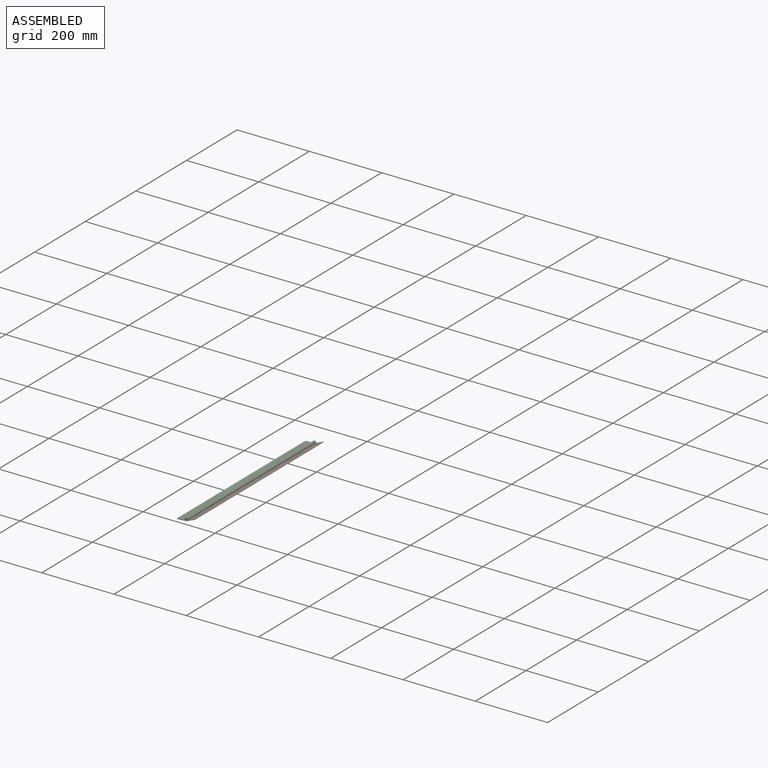
[diagram: assembled view]
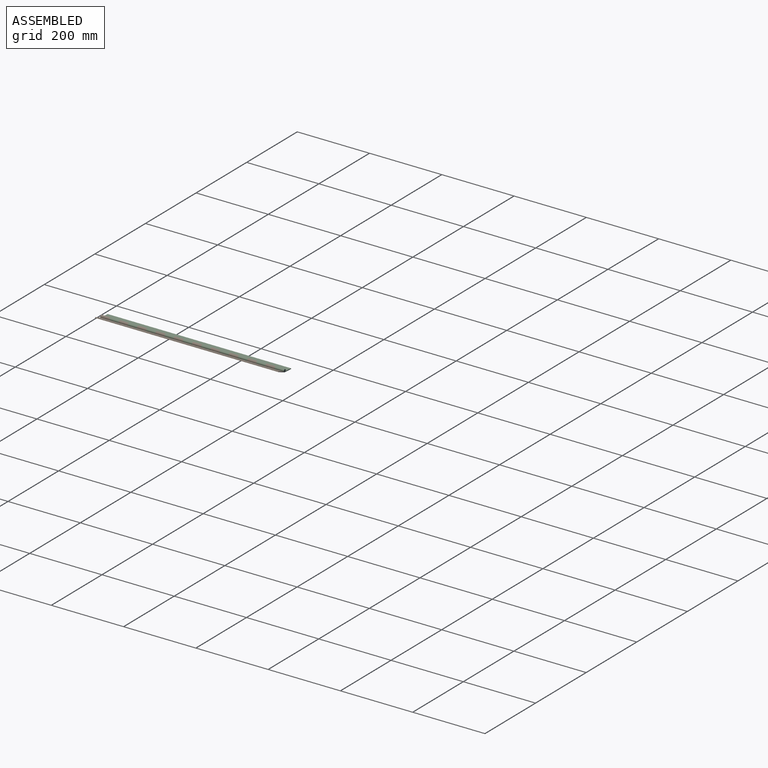
[diagram: assembled view, second angle]
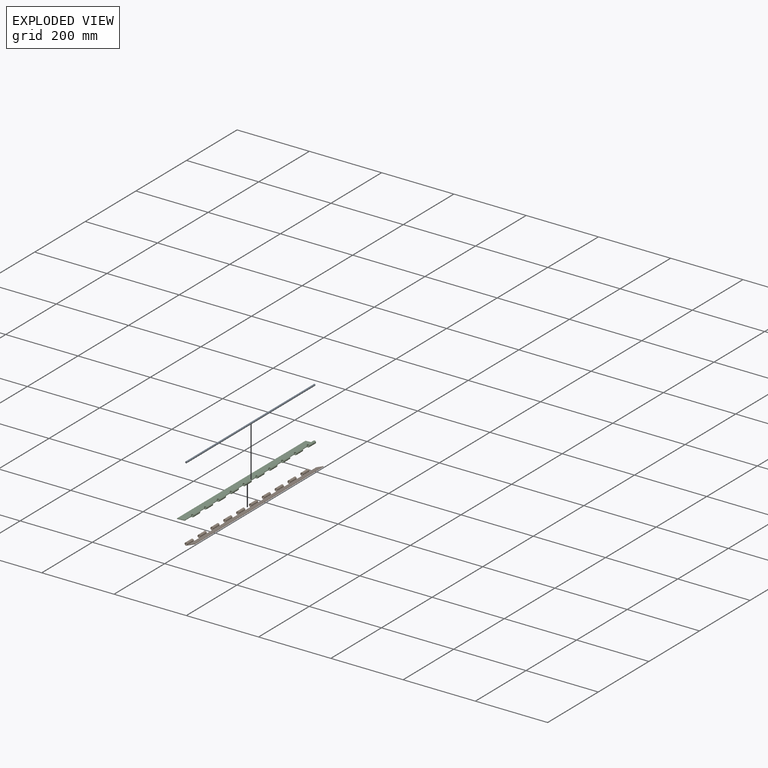
[diagram: exploded view]
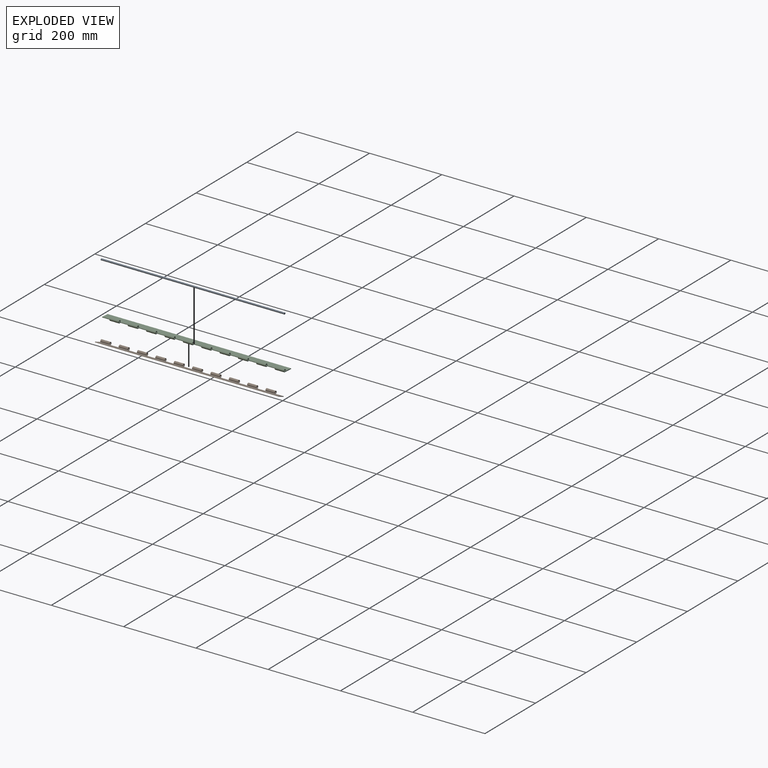
[diagram: exploded view, second angle]
ASSEMBLY  parts=3 mates=2
PART A: 3 faces, bbox 4.8x508x4.8 mm
  f0: cylinder r=2.38mm len=508mm, axis (0,1,0), area 7600.6mm2, adj f1,f2
  f1: plane 4.76x4.76mm, normal (0,1,0), area 17.8mm2, adj f0
  f2: plane 4.76x4.76mm, normal (0,-1,0), area 17.8mm2, adj f0
PART B: 64 faces, bbox 29.3x508x7.8 mm
  f0: plane 508x1.52mm, normal (1,0,0), area 774.2mm2, adj f1,f2,f33,f42
  f1: plane 508x25.4mm, normal (0,0,-1), area 11911.3mm2, adj f0,f19,f20,f21,f22,f23,f24,f25
  f2: plane 508x25.4mm, normal (0,0,1), area 11911.3mm2, adj f0,f3,f4,f5,f6,f7,f8,f9
  f3: cylinder r=2.38mm len=25.4mm, axis (0,1,0), area 324.6mm2, adj f2,f11,f39,f63
  f4: cylinder r=2.38mm len=25.4mm, axis (0,1,0), area 324.6mm2, adj f2,f12,f60,f61
  f5: cylinder r=2.38mm len=25.4mm, axis (0,1,0), area 324.6mm2, adj f2,f13,f57,f58
  f6: cylinder r=2.38mm len=25.4mm, axis (0,1,0), area 324.6mm2, adj f2,f14,f54,f55
  f7: cylinder r=2.38mm len=25.4mm, axis (0,1,0), area 324.6mm2, adj f2,f15,f51,f52
  f8: cylinder r=2.38mm len=25.4mm, axis (0,1,0), area 324.6mm2, adj f2,f16,f48,f49
  f9: cylinder r=2.38mm len=25.4mm, axis (0,1,0), area 324.6mm2, adj f2,f17,f45,f46
  f10: cylinder r=2.38mm len=25.4mm, axis (0,1,0), area 324.6mm2, adj f2,f18,f42,f43
  f11: plane 25.4x1.21mm, normal (-0.61,0,-0.79), area 38.7mm2, adj f3,f19,f39,f63
  f12: plane 25.4x1.21mm, normal (-0.61,0,-0.79), area 38.7mm2, adj f4,f20,f60,f61
  f13: plane 25.4x1.21mm, normal (-0.61,0,-0.79), area 38.7mm2, adj f5,f21,f57,f58
  f14: plane 25.4x1.21mm, normal (-0.61,0,-0.79), area 38.7mm2, adj f6,f22,f54,f55
  f15: plane 25.4x1.21mm, normal (-0.61,0,-0.79), area 38.7mm2, adj f7,f23,f51,f52
  f16: plane 25.4x1.21mm, normal (-0.61,0,-0.79), area 38.7mm2, adj f8,f24,f48,f49
  f17: plane 25.4x1.21mm, normal (-0.61,0,-0.79), area 38.7mm2, adj f9,f25,f45,f46
  f18: plane 25.4x1.21mm, normal (-0.61,0,-0.79), area 38.7mm2, adj f10,f26,f42,f43
  f19: cylinder r=3.91mm len=25.4mm, axis (0,1,0), area 532.3mm2, adj f1,f11,f39,f63
  f20: cylinder r=3.91mm len=25.4mm, axis (0,1,0), area 532.3mm2, adj f1,f12,f60,f61
  f21: cylinder r=3.91mm len=25.4mm, axis (0,1,0), area 532.3mm2, adj f1,f13,f57,f58
  f22: cylinder r=3.91mm len=25.4mm, axis (0,1,0), area 532.3mm2, adj f1,f14,f54,f55
  f23: cylinder r=3.91mm len=25.4mm, axis (0,1,0), area 532.3mm2, adj f1,f15,f51,f52
  f24: cylinder r=3.91mm len=25.4mm, axis (0,1,0), area 532.3mm2, adj f1,f16,f48,f49
  f25: cylinder r=3.91mm len=25.4mm, axis (0,1,0), area 532.3mm2, adj f1,f17,f45,f46
  f26: cylinder r=3.91mm len=25.4mm, axis (0,1,0), area 532.3mm2, adj f1,f18,f42,f43
  f27: cylinder r=2.38mm len=25.4mm, axis (0,1,0), area 324.6mm2, adj f2,f28,f37,f41
  f28: plane 25.4x1.21mm, normal (-0.61,0,-0.79), area 38.7mm2, adj f27,f29,f37,f41
  f29: cylinder r=3.91mm len=25.4mm, axis (0,1,0), area 532.3mm2, adj f1,f28,f37,f41
  f30: cylinder r=2.38mm len=25.4mm, axis (0,1,0), area 324.6mm2, adj f2,f31,f34,f38
  f31: plane 25.4x1.21mm, normal (-0.61,0,-0.79), area 38.7mm2, adj f30,f32,f34,f38
  f32: cylinder r=3.91mm len=25.4mm, axis (0,1,0), area 532.3mm2, adj f1,f31,f34,f38
  f33: plane 21.49x1.52mm, normal (0,1,0), area 32.8mm2, adj f0,f1,f2,f35
  f34: plane 7.81x7.81mm, normal (0,1,0), area 31.7mm2, adj f1,f2,f30,f31,f32,f35
  f35: plane 25.4x1.52mm, normal (-1,0,0), area 38.7mm2, adj f1,f2,f33,f34
  f36: plane 25.4x1.52mm, normal (-1,0,0), area 38.7mm2, adj f1,f2,f37,f38
  f37: plane 7.81x7.81mm, normal (0,1,0), area 31.7mm2, adj f1,f2,f27,f28,f29,f36
  f38: plane 7.81x7.81mm, normal (0,-1,0), area 31.7mm2, adj f1,f2,f30,f31,f32,f36
  f39: plane 7.81x7.81mm, normal (0,1,0), area 31.7mm2, adj f1,f2,f3,f11,f19,f40
  f40: plane 25.4x1.52mm, normal (-1,0,0), area 38.7mm2, adj f1,f2,f39,f41
  f41: plane 7.81x7.81mm, normal (0,-1,0), area 31.7mm2, adj f1,f2,f27,f28,f29,f40
  f42: plane 29.31x7.81mm, normal (0,-1,0), area 64.4mm2, adj f0,f1,f2,f10,f18,f26
  f43: plane 7.81x7.81mm, normal (0,1,0), area 31.7mm2, adj f1,f2,f10,f18,f26,f44
  f44: plane 25.4x1.52mm, normal (-1,0,0), area 38.7mm2, adj f1,f2,f43,f45
  f45: plane 7.81x7.81mm, normal (0,-1,0), area 31.7mm2, adj f1,f2,f9,f17,f25,f44
  f46: plane 7.81x7.81mm, normal (0,1,0), area 31.7mm2, adj f1,f2,f9,f17,f25,f47
  f47: plane 25.4x1.52mm, normal (-1,0,0), area 38.7mm2, adj f1,f2,f46,f48
  f48: plane 7.81x7.81mm, normal (0,-1,0), area 31.7mm2, adj f1,f2,f8,f16,f24,f47
  f49: plane 7.81x7.81mm, normal (0,1,0), area 31.7mm2, adj f1,f2,f8,f16,f24,f50
  f50: plane 25.4x1.52mm, normal (-1,0,0), area 38.7mm2, adj f1,f2,f49,f51
  f51: plane 7.81x7.81mm, normal (0,-1,0), area 31.7mm2, adj f1,f2,f7,f15,f23,f50
  f52: plane 7.81x7.81mm, normal (0,1,0), area 31.7mm2, adj f1,f2,f7,f15,f23,f53
  f53: plane 25.4x1.52mm, normal (-1,0,0), area 38.7mm2, adj f1,f2,f52,f54
  f54: plane 7.81x7.81mm, normal (0,-1,0), area 31.7mm2, adj f1,f2,f6,f14,f22,f53
  f55: plane 7.81x7.81mm, normal (0,1,0), area 31.7mm2, adj f1,f2,f6,f14,f22,f56
  f56: plane 25.4x1.52mm, normal (-1,0,0), area 38.7mm2, adj f1,f2,f55,f57
  f57: plane 7.81x7.81mm, normal (0,-1,0), area 31.7mm2, adj f1,f2,f5,f13,f21,f56
  f58: plane 7.81x7.81mm, normal (0,1,0), area 31.7mm2, adj f1,f2,f5,f13,f21,f59
  f59: plane 25.4x1.52mm, normal (-1,0,0), area 38.7mm2, adj f1,f2,f58,f60
  f60: plane 7.81x7.81mm, normal (0,-1,0), area 31.7mm2, adj f1,f2,f4,f12,f20,f59
  f61: plane 7.81x7.81mm, normal (0,1,0), area 31.7mm2, adj f1,f2,f4,f12,f20,f62
  f62: plane 25.4x1.52mm, normal (-1,0,0), area 38.7mm2, adj f1,f2,f61,f63
  f63: plane 7.81x7.81mm, normal (0,-1,0), area 31.7mm2, adj f1,f2,f3,f11,f19,f62
PART C: 64 faces, bbox 29.3x508x7.8 mm
  f0: plane 508x1.52mm, normal (-1,0,0), area 774.2mm2, adj f1,f2,f33,f63
  f1: plane 508x25.4mm, normal (0,0,1), area 11911.3mm2, adj f0,f19,f20,f21,f22,f23,f24,f25
  f2: plane 508x25.4mm, normal (0,0,-1), area 11911.3mm2, adj f0,f3,f4,f5,f6,f7,f8,f9
  f3: cylinder r=3.91mm len=25.4mm, axis (0,1,0), area 532.3mm2, adj f2,f11,f37,f62
  f4: cylinder r=3.91mm len=25.4mm, axis (0,1,0), area 532.3mm2, adj f2,f12,f59,f60
  f5: cylinder r=3.91mm len=25.4mm, axis (0,1,0), area 532.3mm2, adj f2,f13,f56,f57
  f6: cylinder r=3.91mm len=25.4mm, axis (0,1,0), area 532.3mm2, adj f2,f14,f53,f54
  f7: cylinder r=3.91mm len=25.4mm, axis (0,1,0), area 532.3mm2, adj f2,f15,f50,f51
  f8: cylinder r=3.91mm len=25.4mm, axis (0,1,0), area 532.3mm2, adj f2,f16,f47,f48
  f9: cylinder r=3.91mm len=25.4mm, axis (0,1,0), area 532.3mm2, adj f2,f17,f44,f45
  f10: cylinder r=3.91mm len=25.4mm, axis (0,1,0), area 532.3mm2, adj f2,f18,f41,f42
  f11: plane 25.4x1.21mm, normal (0.61,0,-0.79), area 38.7mm2, adj f3,f19,f37,f62
  f12: plane 25.4x1.21mm, normal (0.61,0,-0.79), area 38.7mm2, adj f4,f20,f59,f60
  f13: plane 25.4x1.21mm, normal (0.61,0,-0.79), area 38.7mm2, adj f5,f21,f56,f57
  f14: plane 25.4x1.21mm, normal (0.61,0,-0.79), area 38.7mm2, adj f6,f22,f53,f54
  f15: plane 25.4x1.21mm, normal (0.61,0,-0.79), area 38.7mm2, adj f7,f23,f50,f51
  f16: plane 25.4x1.21mm, normal (0.61,0,-0.79), area 38.7mm2, adj f8,f24,f47,f48
  f17: plane 25.4x1.21mm, normal (0.61,0,-0.79), area 38.7mm2, adj f9,f25,f44,f45
  f18: plane 25.4x1.21mm, normal (0.61,0,-0.79), area 38.7mm2, adj f10,f26,f41,f42
  f19: cylinder r=2.38mm len=25.4mm, axis (0,1,0), area 324.6mm2, adj f1,f11,f37,f62
  f20: cylinder r=2.38mm len=25.4mm, axis (0,1,0), area 324.6mm2, adj f1,f12,f59,f60
  f21: cylinder r=2.38mm len=25.4mm, axis (0,1,0), area 324.6mm2, adj f1,f13,f56,f57
  f22: cylinder r=2.38mm len=25.4mm, axis (0,1,0), area 324.6mm2, adj f1,f14,f53,f54
  f23: cylinder r=2.38mm len=25.4mm, axis (0,1,0), area 324.6mm2, adj f1,f15,f50,f51
  f24: cylinder r=2.38mm len=25.4mm, axis (0,1,0), area 324.6mm2, adj f1,f16,f47,f48
  f25: cylinder r=2.38mm len=25.4mm, axis (0,1,0), area 324.6mm2, adj f1,f17,f44,f45
  f26: cylinder r=2.38mm len=25.4mm, axis (0,1,0), area 324.6mm2, adj f1,f18,f41,f42
  f27: cylinder r=3.91mm len=25.4mm, axis (0,1,0), area 532.3mm2, adj f2,f28,f35,f39
  f28: plane 25.4x1.21mm, normal (0.61,0,-0.79), area 38.7mm2, adj f27,f29,f35,f39
  f29: cylinder r=2.38mm len=25.4mm, axis (0,1,0), area 324.6mm2, adj f1,f28,f35,f39
  f30: cylinder r=3.91mm len=25.4mm, axis (0,1,0), area 532.3mm2, adj f2,f31,f33,f36
  f31: plane 25.4x1.21mm, normal (0.61,0,-0.79), area 38.7mm2, adj f30,f32,f33,f36
  f32: cylinder r=2.38mm len=25.4mm, axis (0,1,0), area 324.6mm2, adj f1,f31,f33,f36
  f33: plane 29.31x7.81mm, normal (0,1,0), area 64.4mm2, adj f0,f1,f2,f30,f31,f32
  f34: plane 25.4x1.52mm, normal (1,0,0), area 38.7mm2, adj f1,f2,f35,f36
  f35: plane 7.81x7.81mm, normal (0,1,0), area 31.7mm2, adj f1,f2,f27,f28,f29,f34
  f36: plane 7.81x7.81mm, normal (0,-1,0), area 31.7mm2, adj f1,f2,f30,f31,f32,f34
  f37: plane 7.81x7.81mm, normal (0,1,0), area 31.7mm2, adj f1,f2,f3,f11,f19,f38
  f38: plane 25.4x1.52mm, normal (1,0,0), area 38.7mm2, adj f1,f2,f37,f39
  f39: plane 7.81x7.81mm, normal (0,-1,0), area 31.7mm2, adj f1,f2,f27,f28,f29,f38
  f40: plane 25.4x1.52mm, normal (1,0,0), area 38.7mm2, adj f1,f2,f41,f63
  f41: plane 7.81x7.81mm, normal (0,-1,0), area 31.7mm2, adj f1,f2,f10,f18,f26,f40
  f42: plane 7.81x7.81mm, normal (0,1,0), area 31.7mm2, adj f1,f2,f10,f18,f26,f43
  f43: plane 25.4x1.52mm, normal (1,0,0), area 38.7mm2, adj f1,f2,f42,f44
  f44: plane 7.81x7.81mm, normal (0,-1,0), area 31.7mm2, adj f1,f2,f9,f17,f25,f43
  f45: plane 7.81x7.81mm, normal (0,1,0), area 31.7mm2, adj f1,f2,f9,f17,f25,f46
  f46: plane 25.4x1.52mm, normal (1,0,0), area 38.7mm2, adj f1,f2,f45,f47
  f47: plane 7.81x7.81mm, normal (0,-1,0), area 31.7mm2, adj f1,f2,f8,f16,f24,f46
  f48: plane 7.81x7.81mm, normal (0,1,0), area 31.7mm2, adj f1,f2,f8,f16,f24,f49
  f49: plane 25.4x1.52mm, normal (1,0,0), area 38.7mm2, adj f1,f2,f48,f50
  f50: plane 7.81x7.81mm, normal (0,-1,0), area 31.7mm2, adj f1,f2,f7,f15,f23,f49
  f51: plane 7.81x7.81mm, normal (0,1,0), area 31.7mm2, adj f1,f2,f7,f15,f23,f52
  f52: plane 25.4x1.52mm, normal (1,0,0), area 38.7mm2, adj f1,f2,f51,f53
  f53: plane 7.81x7.81mm, normal (0,-1,0), area 31.7mm2, adj f1,f2,f6,f14,f22,f52
  f54: plane 7.81x7.81mm, normal (0,1,0), area 31.7mm2, adj f1,f2,f6,f14,f22,f55
  f55: plane 25.4x1.52mm, normal (1,0,0), area 38.7mm2, adj f1,f2,f54,f56
  f56: plane 7.81x7.81mm, normal (0,-1,0), area 31.7mm2, adj f1,f2,f5,f13,f21,f55
  f57: plane 7.81x7.81mm, normal (0,1,0), area 31.7mm2, adj f1,f2,f5,f13,f21,f58
  f58: plane 25.4x1.52mm, normal (1,0,0), area 38.7mm2, adj f1,f2,f57,f59
  f59: plane 7.81x7.81mm, normal (0,-1,0), area 31.7mm2, adj f1,f2,f4,f12,f20,f58
  f60: plane 7.81x7.81mm, normal (0,1,0), area 31.7mm2, adj f1,f2,f4,f12,f20,f61
  f61: plane 25.4x1.52mm, normal (1,0,0), area 38.7mm2, adj f1,f2,f60,f62
  f62: plane 7.81x7.81mm, normal (0,-1,0), area 31.7mm2, adj f1,f2,f3,f11,f19,f61
  f63: plane 21.49x1.52mm, normal (0,-1,0), area 32.8mm2, adj f0,f1,f2,f40
PLACE A rot(axis=(0,1,0),169.1deg) t=(-6.18,1.54,11.68)mm
PLACE B rot(axis=(0,-1,0),22.3deg) t=(-6.18,1.54,11.68)mm
PLACE C rot(axis=(0,-1,0),2.9deg) t=(-6.18,1.54,11.68)mm fixed
MATE revolute B.f3 <-> A.f0  axis (0,-1,0) through (-6.18,-506.46,11.68)mm
MATE revolute C.f3 <-> B.f3  axis (0,-1,0) through (-6.18,-481.06,11.68)mm
